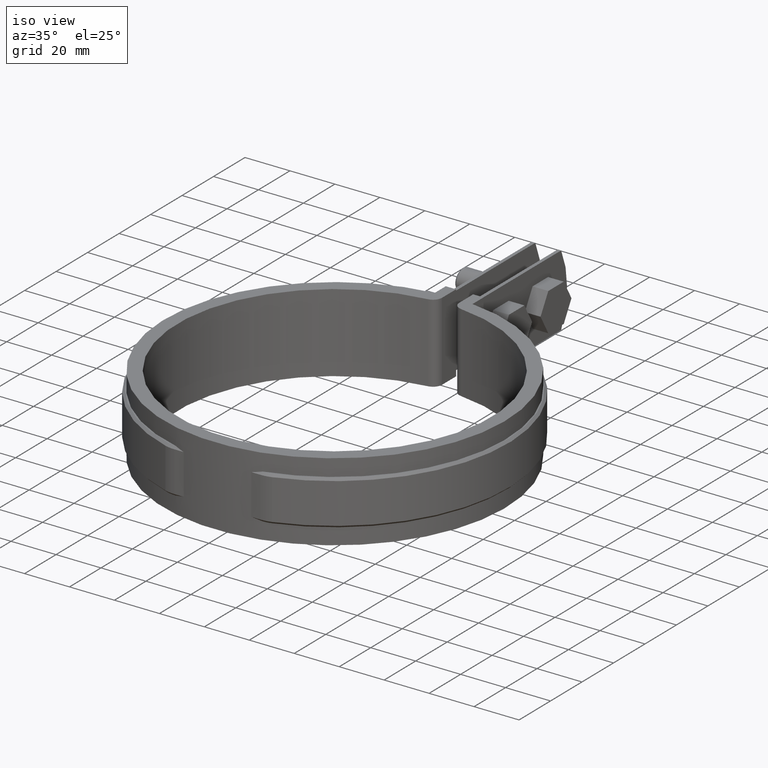
[diagram: clean part render]
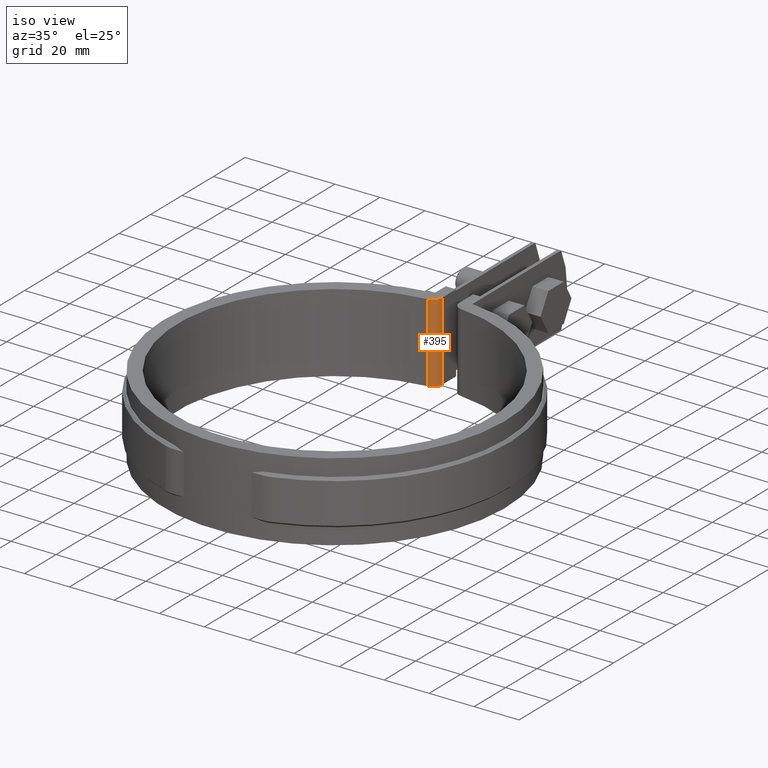
[diagram: same view with one face highlighted and labeled with its STEP entity id]
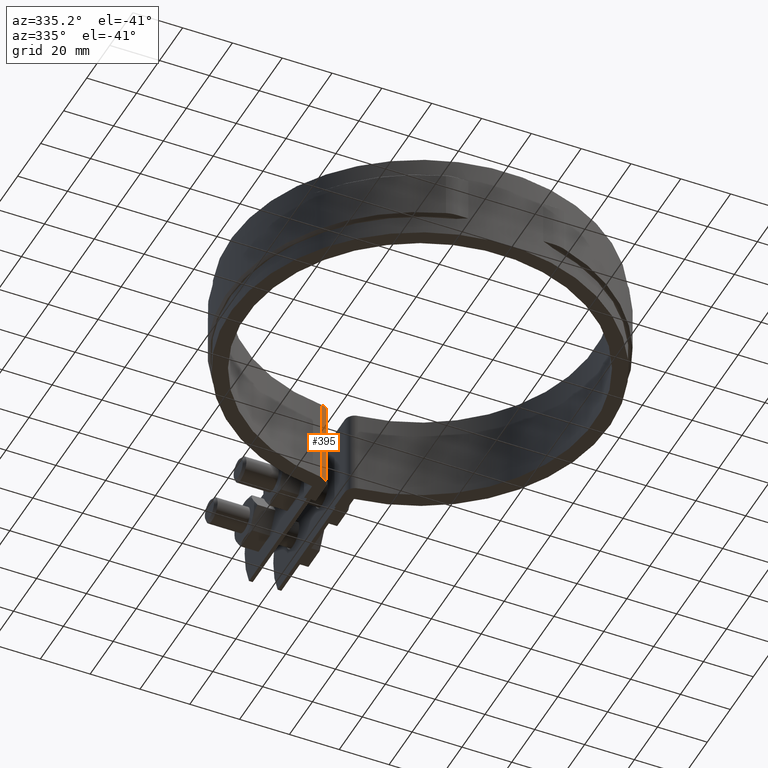
[diagram: same view with one face highlighted and labeled with its STEP entity id]
A machine part, iso view. The second image highlights one B-rep face of the part: STEP entity #395.
A second angle (auxiliary view) of the same face is appended — the face is thin or edge-on in the first view.
In plain terms, the highlighted cylindrical surface (edge-blend (fillet) strip) has radius 4 mm, axis along (0, 0, 1).
Its self-contained STEP definition (entity closure, byte-faithful):
#395 = ADVANCED_FACE( '', ( #642 ), #643, .T. );
#642 = FACE_OUTER_BOUND( '', #1720, .T. );
#643 = CYLINDRICAL_SURFACE( '', #1721, 4.00000000000000 );
#1720 = EDGE_LOOP( '', ( #4106, #4107, #4108, #4109 ) );
#1721 = AXIS2_PLACEMENT_3D( '', #4110, #4111, #4112 );
#4106 = ORIENTED_EDGE( '', *, *, #4761, .F. );
#4107 = ORIENTED_EDGE( '', *, *, #4727, .F. );
#4108 = ORIENTED_EDGE( '', *, *, #4719, .T. );
#4109 = ORIENTED_EDGE( '', *, *, #4755, .T. );
#4110 = CARTESIAN_POINT( '', ( -7.80000000000000, 73.5877707231304, -33.5000000000000 ) );
#4111 = DIRECTION( '', ( 0.000000000000000, 0.000000000000000, 1.00000000000000 ) );
#4112 = DIRECTION( '', ( 0.000000000000000, 1.00000000000000, 0.000000000000000 ) );
#4719 = EDGE_CURVE( '', #5206, #5204, #5207, .T. );
#4727 = EDGE_CURVE( '', #5206, #5218, #5220, .T. );
#4755 = EDGE_CURVE( '', #5204, #5271, #5273, .T. );
#4761 = EDGE_CURVE( '', #5218, #5271, #5283, .T. );
#5204 = VERTEX_POINT( '', #6826 );
#5206 = VERTEX_POINT( '', #6829 );
#5207 = CIRCLE( '', #6830, 4.00000000000000 );
#5218 = VERTEX_POINT( '', #6845 );
#5220 = LINE( '', #6847, #6848 );
#5271 = VERTEX_POINT( '', #7239 );
#5273 = LINE( '', #7242, #7243 );
#5283 = CIRCLE( '', #7257, 4.00000000000000 );
#6826 = CARTESIAN_POINT( '', ( -3.80000000000000, 73.5877707231304, -33.5000000000000 ) );
#6829 = CARTESIAN_POINT( '', ( -7.37837837837835, 69.6100533867449, -33.5000000000000 ) );
#6830 = AXIS2_PLACEMENT_3D( '', #8642, #8643, #8644 );
#6845 = CARTESIAN_POINT( '', ( -7.37837837837835, 69.6100533867449, 1.50000000000000 ) );
#6847 = CARTESIAN_POINT( '', ( -7.37837837837833, 69.6100533867449, -33.5000000000000 ) );
#6848 = VECTOR( '', #8658, 1000.00000000000 );
#7239 = CARTESIAN_POINT( '', ( -3.80000000000000, 73.5877707231304, 1.50000000000000 ) );
#7242 = CARTESIAN_POINT( '', ( -3.80000000000000, 73.5877707231304, -33.5000000000000 ) );
#7243 = VECTOR( '', #8672, 1000.00000000000 );
#7257 = AXIS2_PLACEMENT_3D( '', #8680, #8681, #8682 );
#8642 = CARTESIAN_POINT( '', ( -7.80000000000000, 73.5877707231304, -33.5000000000000 ) );
#8643 = DIRECTION( '', ( 0.000000000000000, 0.000000000000000, 1.00000000000000 ) );
#8644 = DIRECTION( '', ( 1.00000000000000, 0.000000000000000, 0.000000000000000 ) );
#8658 = DIRECTION( '', ( 0.000000000000000, 0.000000000000000, 1.00000000000000 ) );
#8672 = DIRECTION( '', ( 0.000000000000000, 0.000000000000000, 1.00000000000000 ) );
#8680 = CARTESIAN_POINT( '', ( -7.80000000000000, 73.5877707231304, 1.50000000000000 ) );
#8681 = DIRECTION( '', ( 0.000000000000000, 0.000000000000000, 1.00000000000000 ) );
#8682 = DIRECTION( '', ( 1.00000000000000, 0.000000000000000, 0.000000000000000 ) );